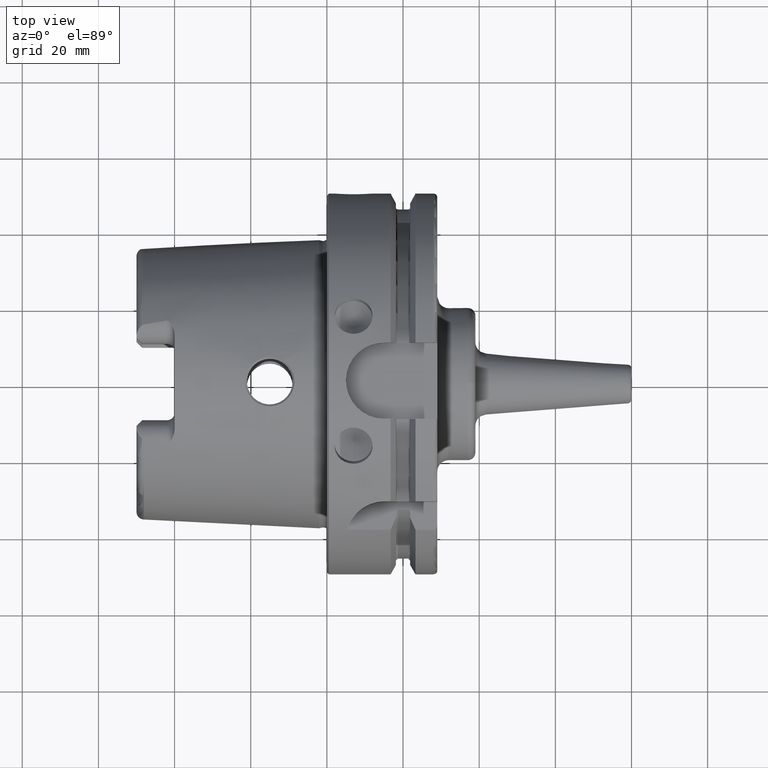
[diagram: clean part render]
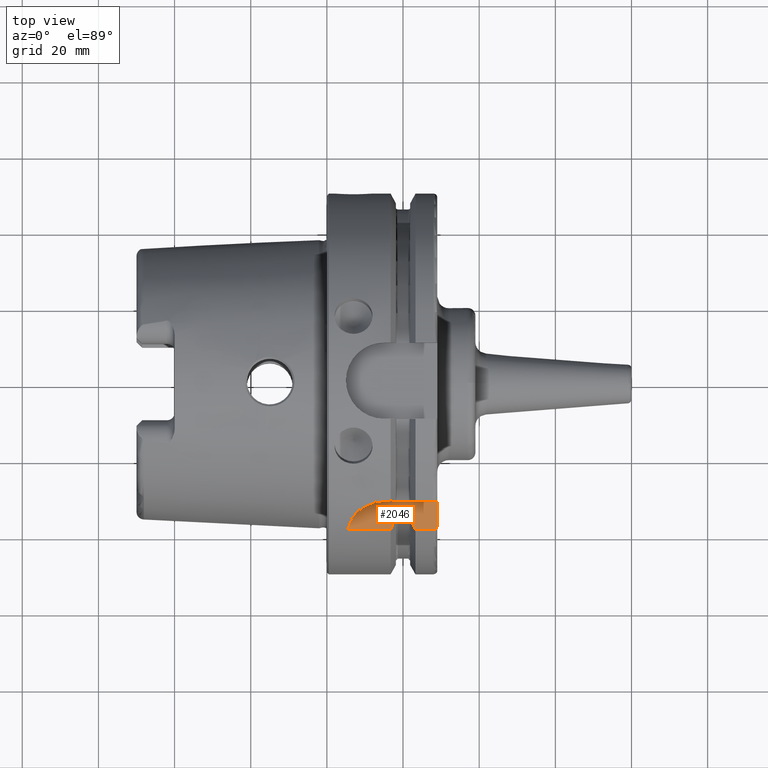
[diagram: same view with one face highlighted and labeled with its STEP entity id]
A machine part, top view. The second image highlights one B-rep face of the part: STEP entity #2046.
In plain terms, the highlighted planar face has unit normal (0, 0, 1).
Its self-contained STEP definition (entity closure, byte-faithful):
#19=(
BOUNDED_CURVE()
B_SPLINE_CURVE(2,(#4071,#4072,#4073),.UNSPECIFIED.,.F.,.F.)
B_SPLINE_CURVE_WITH_KNOTS((3,3),(0.,0.343884390880417),.UNSPECIFIED.)
CURVE()
GEOMETRIC_REPRESENTATION_ITEM()
RATIONAL_B_SPLINE_CURVE((1.,1.00052016257104,1.))
REPRESENTATION_ITEM('')
);
#20=(
BOUNDED_CURVE()
B_SPLINE_CURVE(2,(#4103,#4104,#4105),.UNSPECIFIED.,.F.,.F.)
B_SPLINE_CURVE_WITH_KNOTS((3,3),(0.,0.343884390880419),.UNSPECIFIED.)
CURVE()
GEOMETRIC_REPRESENTATION_ITEM()
RATIONAL_B_SPLINE_CURVE((1.,1.00052016257005,1.))
REPRESENTATION_ITEM('')
);
#74=B_SPLINE_CURVE_WITH_KNOTS('',3,(#4077,#4078,#4079,#4080,#4081,#4082,
#4083,#4084,#4085,#4086),.UNSPECIFIED.,.F.,.F.,(4,2,2,2,4),(-0.175716275951496,
-0.15902214964786,-0.139262857016594,-0.115342898112829,-0.0876407705892815),
 .UNSPECIFIED.);
#75=B_SPLINE_CURVE_WITH_KNOTS('',3,(#4090,#4091,#4092,#4093,#4094,#4095,
#4096,#4097,#4098,#4099),.UNSPECIFIED.,.F.,.F.,(4,2,2,2,4),(0.0876407705892814,
0.115342898112828,0.139262857016592,0.15902214964786,0.175716275951495),
 .UNSPECIFIED.);
#76=B_SPLINE_CURVE_WITH_KNOTS('',3,(#4108,#4109,#4110,#4111,#4112,#4113,
#4114,#4115,#4116,#4117),.UNSPECIFIED.,.F.,.F.,(4,2,2,2,4),(-0.170825962094808,
-0.118543630596578,-0.0729156509442915,-0.0340271521483428,0.),
 .UNSPECIFIED.);
#158=PLANE('',#2254);
#184=LINE('',#3083,#291);
#228=LINE('',#4018,#335);
#233=LINE('',#4069,#340);
#234=LINE('',#4075,#341);
#235=LINE('',#4088,#342);
#236=LINE('',#4101,#343);
#237=LINE('',#4107,#344);
#291=VECTOR('',#2464,10.);
#335=VECTOR('',#2670,10.);
#340=VECTOR('',#2677,10.);
#341=VECTOR('',#2678,10.);
#342=VECTOR('',#2679,10.);
#343=VECTOR('',#2680,10.);
#344=VECTOR('',#2681,10.);
#456=FACE_OUTER_BOUND('',#581,.T.);
#581=EDGE_LOOP('',(#1572,#1573,#1574,#1575,#1576,#1577,#1578,#1579,#1580,
#1581,#1582,#1583,#1584));
#724=CIRCLE('',#2252,10.);
#814=VERTEX_POINT('',#3081);
#815=VERTEX_POINT('',#3082);
#908=VERTEX_POINT('',#3998);
#910=VERTEX_POINT('',#4012);
#920=VERTEX_POINT('',#4068);
#921=VERTEX_POINT('',#4070);
#922=VERTEX_POINT('',#4074);
#923=VERTEX_POINT('',#4076);
#924=VERTEX_POINT('',#4087);
#925=VERTEX_POINT('',#4089);
#926=VERTEX_POINT('',#4100);
#927=VERTEX_POINT('',#4102);
#928=VERTEX_POINT('',#4106);
#1030=EDGE_CURVE('',#814,#815,#184,.T.);
#1155=EDGE_CURVE('',#910,#908,#724,.T.);
#1158=EDGE_CURVE('',#814,#910,#228,.T.);
#1168=EDGE_CURVE('',#920,#908,#233,.T.);
#1169=EDGE_CURVE('',#921,#920,#19,.T.);
#1170=EDGE_CURVE('',#922,#921,#234,.T.);
#1171=EDGE_CURVE('',#923,#922,#74,.T.);
#1172=EDGE_CURVE('',#924,#923,#235,.T.);
#1173=EDGE_CURVE('',#925,#924,#75,.T.);
#1174=EDGE_CURVE('',#926,#925,#236,.T.);
#1175=EDGE_CURVE('',#927,#926,#20,.T.);
#1176=EDGE_CURVE('',#928,#927,#237,.T.);
#1177=EDGE_CURVE('',#815,#928,#76,.T.);
#1572=ORIENTED_EDGE('',*,*,#1168,.F.);
#1573=ORIENTED_EDGE('',*,*,#1169,.F.);
#1574=ORIENTED_EDGE('',*,*,#1170,.F.);
#1575=ORIENTED_EDGE('',*,*,#1171,.F.);
#1576=ORIENTED_EDGE('',*,*,#1172,.F.);
#1577=ORIENTED_EDGE('',*,*,#1173,.F.);
#1578=ORIENTED_EDGE('',*,*,#1174,.F.);
#1579=ORIENTED_EDGE('',*,*,#1175,.F.);
#1580=ORIENTED_EDGE('',*,*,#1176,.F.);
#1581=ORIENTED_EDGE('',*,*,#1177,.F.);
#1582=ORIENTED_EDGE('',*,*,#1030,.F.);
#1583=ORIENTED_EDGE('',*,*,#1158,.T.);
#1584=ORIENTED_EDGE('',*,*,#1155,.T.);
#2046=ADVANCED_FACE('',(#456),#158,.T.);
#2252=AXIS2_PLACEMENT_3D('',#4013,#2664,#2665);
#2254=AXIS2_PLACEMENT_3D('',#4067,#2675,#2676);
#2464=DIRECTION('',(0.,-1.,0.));
#2664=DIRECTION('center_axis',(0.,0.,1.));
#2665=DIRECTION('ref_axis',(0.,1.,0.));
#2670=DIRECTION('',(-1.,3.17206578464331E-16,0.));
#2675=DIRECTION('center_axis',(0.,0.,1.));
#2676=DIRECTION('ref_axis',(1.,0.,0.));
#2677=DIRECTION('',(-1.,0.,0.));
#2678=DIRECTION('',(0.,-1.,0.));
#2679=DIRECTION('',(-1.,0.,0.));
#2680=DIRECTION('',(0.,1.,0.));
#2681=DIRECTION('',(-1.,0.,0.));
#3081=CARTESIAN_POINT('',(29.,-31.5,31.5));
#3082=CARTESIAN_POINT('',(29.,-37.5333185316726,31.5));
#3083=CARTESIAN_POINT('',(29.,-18.25,31.5));
#3998=CARTESIAN_POINT('',(5.36310214079494,-38.8297566307078,31.5));
#4012=CARTESIAN_POINT('',(15.,-31.5,31.5));
#4013=CARTESIAN_POINT('Origin',(15.,-41.5,31.5));
#4018=CARTESIAN_POINT('',(29.,-31.5,31.5));
#4067=CARTESIAN_POINT('Origin',(17.,-36.5,31.5));
#4068=CARTESIAN_POINT('',(16.7379709790786,-38.8297566307078,31.5));
#4069=CARTESIAN_POINT('',(8.61898548953931,-38.8297566307078,31.5));
#4070=CARTESIAN_POINT('',(18.125,-35.6830642593065,31.5));
#4071=CARTESIAN_POINT('Ctrl Pts',(18.125,-35.6830642593066,31.5));
#4072=CARTESIAN_POINT('Ctrl Pts',(17.4607727557241,-37.2176818849689,31.5));
#4073=CARTESIAN_POINT('Ctrl Pts',(16.7379709790786,-38.8297566307079,31.5));
#4074=CARTESIAN_POINT('',(18.125,-34.2052627529741,31.5));
#4075=CARTESIAN_POINT('',(18.125,5.,31.5));
#4076=CARTESIAN_POINT('',(18.625,-33.5223805837235,31.5));
#4077=CARTESIAN_POINT('Ctrl Pts',(18.625,-33.5223805837235,31.5));
#4078=CARTESIAN_POINT('Ctrl Pts',(18.5693529123212,-33.5223805837235,31.5));
#4079=CARTESIAN_POINT('Ctrl Pts',(18.5045806209474,-33.538617945543,31.5));
#4080=CARTESIAN_POINT('Ctrl Pts',(18.3957531993943,-33.5926698815421,31.5));
#4081=CARTESIAN_POINT('Ctrl Pts',(18.3354671583148,-33.6437821851056,31.5));
#4082=CARTESIAN_POINT('Ctrl Pts',(18.2428076522704,-33.7560891280603,31.5));
#4083=CARTESIAN_POINT('Ctrl Pts',(18.1981986617216,-33.8407334953009,31.5));
#4084=CARTESIAN_POINT('Ctrl Pts',(18.1422893312478,-34.003470946295,31.5));
#4085=CARTESIAN_POINT('Ctrl Pts',(18.125,-34.1129223278956,31.5));
#4086=CARTESIAN_POINT('Ctrl Pts',(18.125,-34.2052627529741,31.5));
#4087=CARTESIAN_POINT('',(21.375,-33.5223805837235,31.5));
#4088=CARTESIAN_POINT('',(20.,-33.5223805837235,31.5));
#4089=CARTESIAN_POINT('',(21.875,-34.2052627529741,31.5));
#4090=CARTESIAN_POINT('Ctrl Pts',(21.875,-34.2052627529741,31.5));
#4091=CARTESIAN_POINT('Ctrl Pts',(21.875,-34.1129223278957,31.5));
#4092=CARTESIAN_POINT('Ctrl Pts',(21.8577106687523,-34.003470946295,31.5));
#4093=CARTESIAN_POINT('Ctrl Pts',(21.8018013382784,-33.8407334953009,31.5));
#4094=CARTESIAN_POINT('Ctrl Pts',(21.7571923477296,-33.7560891280604,31.5));
#4095=CARTESIAN_POINT('Ctrl Pts',(21.6645328416852,-33.6437821851056,31.5));
#4096=CARTESIAN_POINT('Ctrl Pts',(21.6042468006057,-33.5926698815421,31.5));
#4097=CARTESIAN_POINT('Ctrl Pts',(21.4954193790526,-33.538617945543,31.5));
#4098=CARTESIAN_POINT('Ctrl Pts',(21.4306470876788,-33.5223805837235,31.5));
#4099=CARTESIAN_POINT('Ctrl Pts',(21.375,-33.5223805837235,31.5));
#4100=CARTESIAN_POINT('',(21.875,-35.6830642593065,31.5));
#4101=CARTESIAN_POINT('',(21.875,5.54879763209582,31.5));
#4102=CARTESIAN_POINT('',(23.2620290209214,-38.8297566307078,31.5));
#4103=CARTESIAN_POINT('Ctrl Pts',(23.2620290209214,-38.8297566307078,31.5));
#4104=CARTESIAN_POINT('Ctrl Pts',(22.5392272442767,-37.2176818849707,31.5));
#4105=CARTESIAN_POINT('Ctrl Pts',(21.875,-35.6830642593065,31.5));
#4106=CARTESIAN_POINT('',(28.,-38.8297566307078,31.5));
#4107=CARTESIAN_POINT('',(25.6310145104607,-38.8297566307078,31.5));
#4108=CARTESIAN_POINT('Ctrl Pts',(29.,-37.5333185316726,31.5));
#4109=CARTESIAN_POINT('Ctrl Pts',(29.,-37.7075929700001,31.5));
#4110=CARTESIAN_POINT('Ctrl Pts',(28.9664820083304,-37.9140187901503,31.5));
#4111=CARTESIAN_POINT('Ctrl Pts',(28.8572425149189,-38.2215616508799,31.5));
#4112=CARTESIAN_POINT('Ctrl Pts',(28.7693181429129,-38.3814988424326,31.5));
#4113=CARTESIAN_POINT('Ctrl Pts',(28.5860354601279,-38.5954486383736,31.5));
#4114=CARTESIAN_POINT('Ctrl Pts',(28.4650491410143,-38.6932205975694,31.5));
#4115=CARTESIAN_POINT('Ctrl Pts',(28.2458099245109,-38.7981421072727,31.5));
#4116=CARTESIAN_POINT('Ctrl Pts',(28.1134238404945,-38.8297566307078,31.5));
#4117=CARTESIAN_POINT('Ctrl Pts',(28.,-38.8297566307078,31.5));